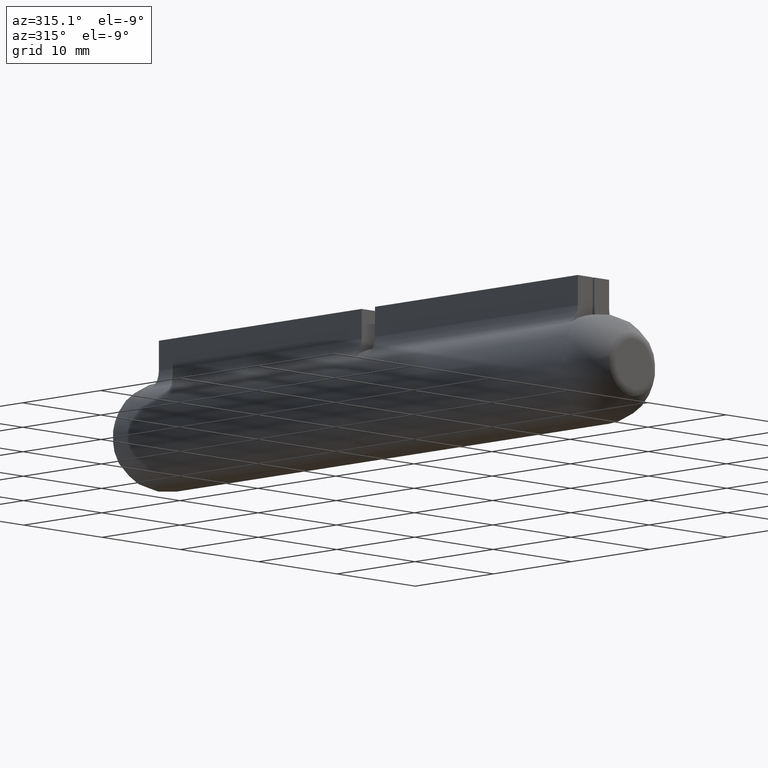
[diagram: clean part render]
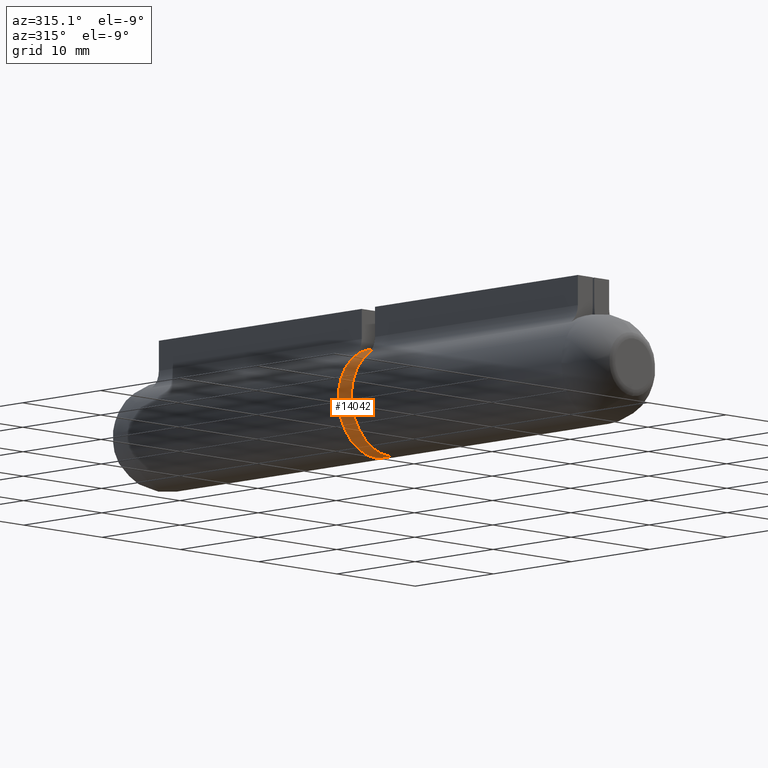
[diagram: same view with one face highlighted and labeled with its STEP entity id]
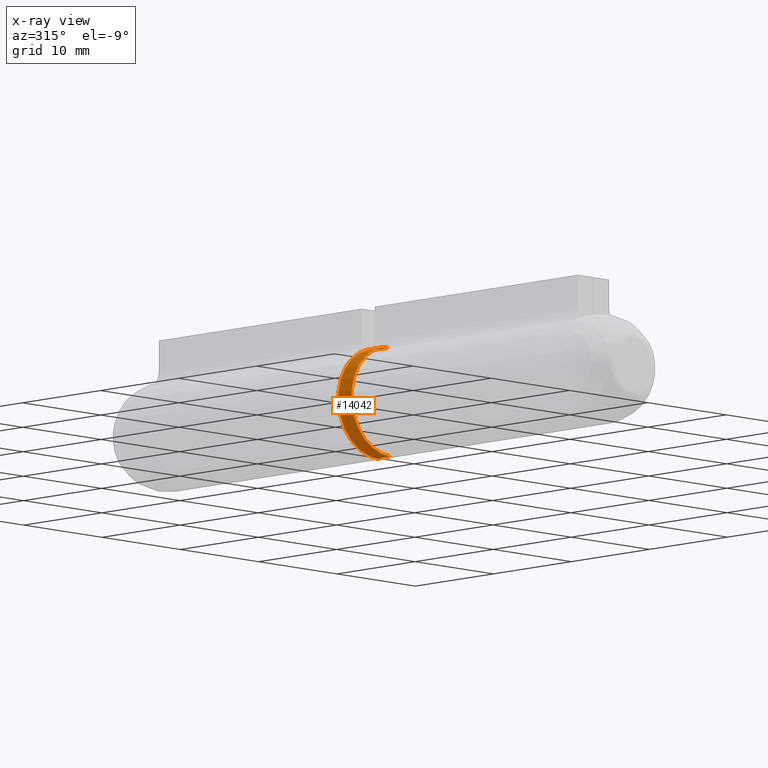
[diagram: x-ray of the same camera — body ghosted, the highlighted face saturated]
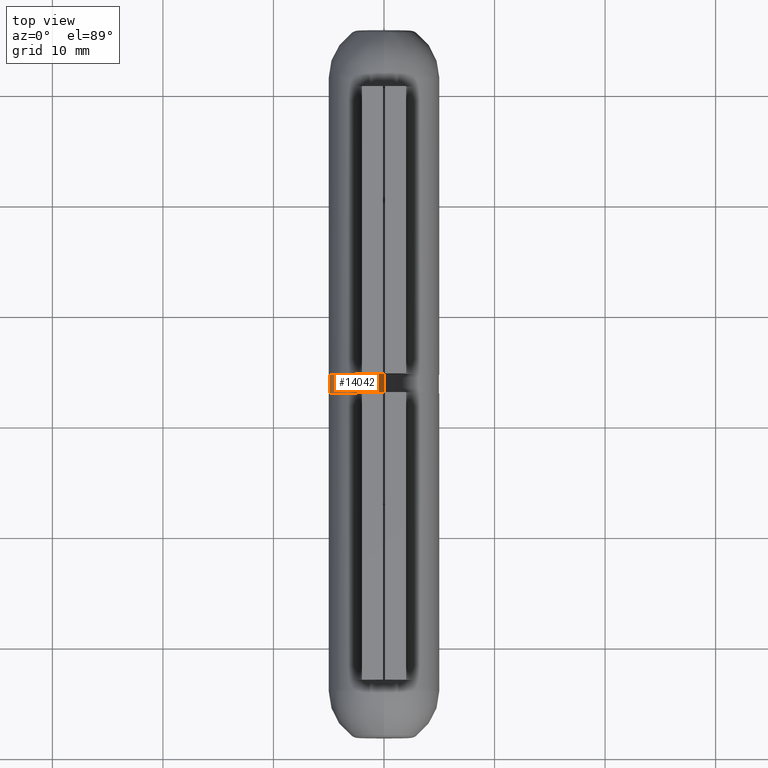
[diagram: same view with one face highlighted and labeled with its STEP entity id]
A machine part, auxiliary view. The second image highlights one B-rep face of the part: STEP entity #14042.
The next image is the same camera in x-ray: the body ghosted, the highlighted face saturated — about 0% of this face is hidden behind the body in this view.
A second angle (top view) of the same face is appended — the face is thin or edge-on in the first view.
In plain terms, the highlighted cylindrical surface (partial cylindrical patch) has radius 5 mm, axis along (-0, -1, -0).
Its self-contained STEP definition (entity closure, byte-faithful):
#514 = EDGE_CURVE ( 'NONE', #5728, #12395, #12174, .T. ) ;
#575 = EDGE_CURVE ( 'NONE', #9593, #5728, #9636, .T. ) ;
#878 = DIRECTION ( 'NONE',  ( 0.000000000000000000, 1.000000000000000000, 0.000000000000000000 ) ) ;
#1658 = CARTESIAN_POINT ( 'NONE',  ( 0.000000000000000000, 14.69999999999999929, -5.000000000000000000 ) ) ;
#1849 = DIRECTION ( 'NONE',  ( -0.000000000000000000, -1.000000000000000000, -0.000000000000000000 ) ) ;
#1883 = AXIS2_PLACEMENT_3D ( 'NONE', #7388, #878, #5228 ) ;
#2842 = VECTOR ( 'NONE', #3176, 1000.000000000000000 ) ;
#3176 = DIRECTION ( 'NONE',  ( -0.000000000000000000, -1.000000000000000000, -0.000000000000000000 ) ) ;
#4083 = DIRECTION ( 'NONE',  ( 0.000000000000000000, 0.000000000000000000, -1.000000000000000000 ) ) ;
#4909 = CARTESIAN_POINT ( 'NONE',  ( 6.123233995736766282E-16, 13.00000000000000000, 5.000000000000000000 ) ) ;
#5220 = DIRECTION ( 'NONE',  ( 0.000000000000000000, 1.000000000000000000, 0.000000000000000000 ) ) ;
#5228 = DIRECTION ( 'NONE',  ( 0.000000000000000000, 0.000000000000000000, 1.000000000000000000 ) ) ;
#5551 = LINE ( 'NONE', #10879, #6582 ) ;
#5728 = VERTEX_POINT ( 'NONE', #10175 ) ;
#6018 = EDGE_CURVE ( 'NONE', #9780, #12395, #5551, .T. ) ;
#6070 = CYLINDRICAL_SURFACE ( 'NONE', #9360, 5.000000000000000000 ) ;
#6374 = CARTESIAN_POINT ( 'NONE',  ( 0.000000000000000000, 14.69999999999999929, -5.000000000000000000 ) ) ;
#6412 = FACE_OUTER_BOUND ( 'NONE', #9242, .T. ) ;
#6582 = VECTOR ( 'NONE', #10834, 1000.000000000000000 ) ;
#7388 = CARTESIAN_POINT ( 'NONE',  ( 0.000000000000000000, 14.69999999999999929, 0.000000000000000000 ) ) ;
#7875 = ORIENTED_EDGE ( 'NONE', *, *, #514, .T. ) ;
#7994 = EDGE_CURVE ( 'NONE', #9593, #9780, #12713, .T. ) ;
#8904 = AXIS2_PLACEMENT_3D ( 'NONE', #9810, #5220, #12860 ) ;
#9242 = EDGE_LOOP ( 'NONE', ( #13999, #9853, #11727, #7875 ) ) ;
#9360 = AXIS2_PLACEMENT_3D ( 'NONE', #12674, #1849, #4083 ) ;
#9593 = VERTEX_POINT ( 'NONE', #1658 ) ;
#9636 = LINE ( 'NONE', #6374, #2842 ) ;
#9780 = VERTEX_POINT ( 'NONE', #13847 ) ;
#9810 = CARTESIAN_POINT ( 'NONE',  ( 0.000000000000000000, 13.00000000000000000, 0.000000000000000000 ) ) ;
#9853 = ORIENTED_EDGE ( 'NONE', *, *, #7994, .F. ) ;
#10175 = CARTESIAN_POINT ( 'NONE',  ( 0.000000000000000000, 13.00000000000000000, -5.000000000000000000 ) ) ;
#10834 = DIRECTION ( 'NONE',  ( -0.000000000000000000, -1.000000000000000000, -0.000000000000000000 ) ) ;
#10879 = CARTESIAN_POINT ( 'NONE',  ( 6.123233995736766282E-16, 14.69999999999999929, 5.000000000000000000 ) ) ;
#11727 = ORIENTED_EDGE ( 'NONE', *, *, #575, .T. ) ;
#12174 = CIRCLE ( 'NONE', #8904, 5.000000000000000000 ) ;
#12395 = VERTEX_POINT ( 'NONE', #4909 ) ;
#12674 = CARTESIAN_POINT ( 'NONE',  ( 0.000000000000000000, 14.69999999999999929, 0.000000000000000000 ) ) ;
#12713 = CIRCLE ( 'NONE', #1883, 5.000000000000000000 ) ;
#12860 = DIRECTION ( 'NONE',  ( 0.000000000000000000, 0.000000000000000000, 1.000000000000000000 ) ) ;
#13847 = CARTESIAN_POINT ( 'NONE',  ( 6.123233995736766282E-16, 14.69999999999999929, 5.000000000000000000 ) ) ;
#13999 = ORIENTED_EDGE ( 'NONE', *, *, #6018, .F. ) ;
#14042 = ADVANCED_FACE ( 'NONE', ( #6412 ), #6070, .T. ) ;